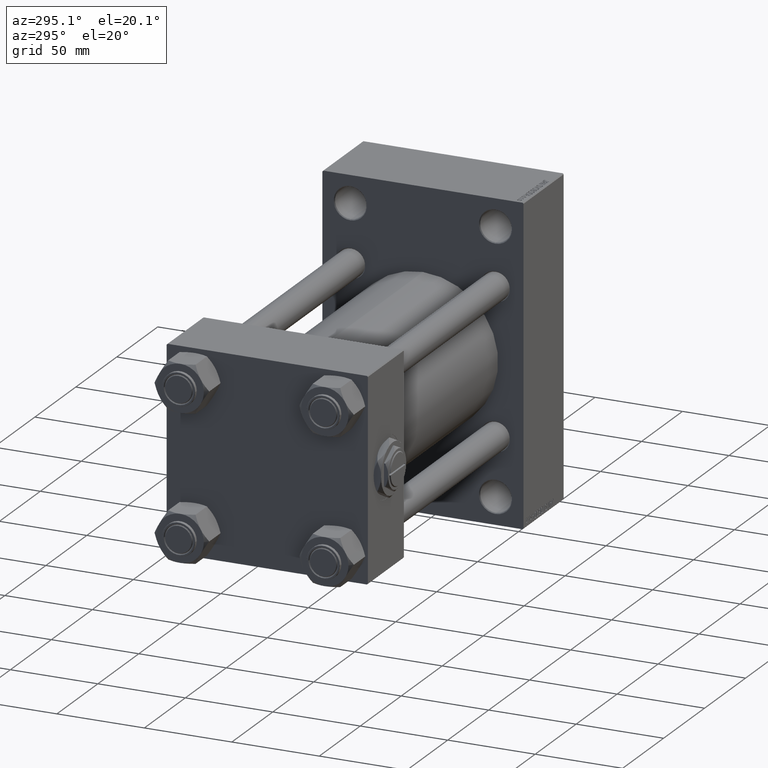
[diagram: clean part render]
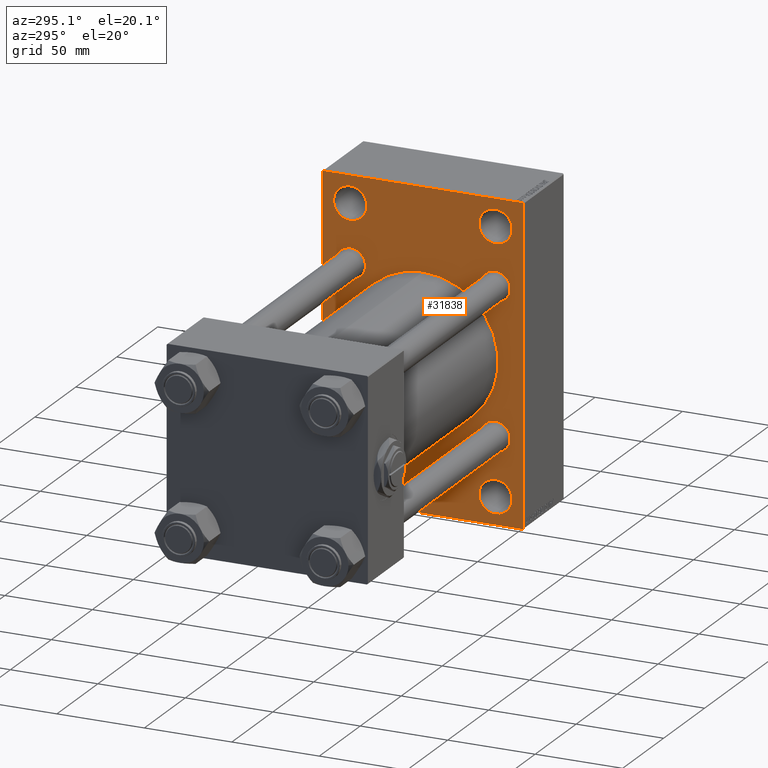
[diagram: same view with one face highlighted and labeled with its STEP entity id]
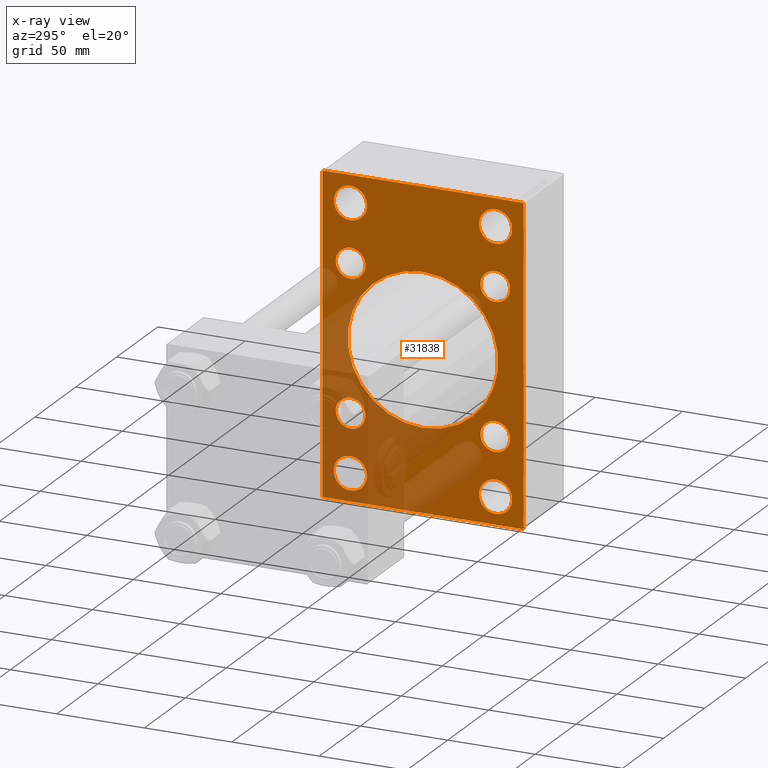
[diagram: x-ray of the same camera — body ghosted, the highlighted face saturated]
A machine part, auxiliary view. The second image highlights one B-rep face of the part: STEP entity #31838.
The next image is the same camera in x-ray: the body ghosted, the highlighted face saturated — about 33% of this face is hidden behind the body in this view.
In plain terms, the highlighted planar face has unit normal (-1, 0, 0).
Its self-contained STEP definition (entity closure, byte-faithful):
#712 = VERTEX_POINT ( 'NONE', #11773 ) ;
#1048 = CARTESIAN_POINT ( 'NONE',  ( 190.0000000000000000, -57.50000000000002132, -89.49999999999997158 ) ) ;
#1068 = CARTESIAN_POINT ( 'NONE',  ( 190.0000000000000000, 41.50000000000000711, 74.50000000000001421 ) ) ;
#1575 = VERTEX_POINT ( 'NONE', #13749 ) ;
#1592 = VERTEX_POINT ( 'NONE', #6980 ) ;
#1739 = CARTESIAN_POINT ( 'NONE',  ( 190.0000000000000000, -41.34999999999998721, -49.85000000000002274 ) ) ;
#1802 = DIRECTION ( 'NONE',  ( 0.000000000000000000, 0.000000000000000000, 1.000000000000000000 ) ) ;
#1828 = AXIS2_PLACEMENT_3D ( 'NONE', #2991, #48993, #21734 ) ;
#1865 = CARTESIAN_POINT ( 'NONE',  ( 190.0000000000000000, 73.50000000000000000, 73.50000000000000000 ) ) ;
#1892 = VERTEX_POINT ( 'NONE', #13445 ) ;
#1895 = EDGE_CURVE ( 'NONE', #33563, #8162, #43940, .T. ) ;
#1953 = EDGE_LOOP ( 'NONE', ( #6549, #42275 ) ) ;
#2056 = LINE ( 'NONE', #47061, #36408 ) ;
#2123 = CARTESIAN_POINT ( 'NONE',  ( 190.0000000000000000, -41.49999999999999289, -74.49999999999998579 ) ) ;
#2580 = CIRCLE ( 'NONE', #4187, 8.500000000000007105 ) ;
#2991 = CARTESIAN_POINT ( 'NONE',  ( 190.0000000000000000, 41.34999999999999432, -41.35000000000000142 ) ) ;
#2994 = ORIENTED_EDGE ( 'NONE', *, *, #36522, .T. ) ;
#3532 = VERTEX_POINT ( 'NONE', #10392 ) ;
#4182 = CIRCLE ( 'NONE', #29729, 8.500000000000007105 ) ;
#4187 = AXIS2_PLACEMENT_3D ( 'NONE', #27138, #15877, #19877 ) ;
#4211 = CARTESIAN_POINT ( 'NONE',  ( 190.0000000000000000, 41.34999999999999432, -32.84999999999999432 ) ) ;
#4523 = EDGE_CURVE ( 'NONE', #26542, #33563, #12380, .T. ) ;
#4784 = DIRECTION ( 'NONE',  ( 0.000000000000000000, 0.000000000000000000, -1.000000000000000000 ) ) ;
#4787 = EDGE_CURVE ( 'NONE', #23980, #7334, #28921, .T. ) ;
#4895 = AXIS2_PLACEMENT_3D ( 'NONE', #42410, #15896, #12155 ) ;
#4958 = EDGE_CURVE ( 'NONE', #32715, #37116, #44902, .T. ) ;
#5022 = DIRECTION ( 'NONE',  ( 0.000000000000000000, 0.000000000000000000, -1.000000000000000000 ) ) ;
#5092 = ORIENTED_EDGE ( 'NONE', *, *, #15119, .T. ) ;
#5093 = ORIENTED_EDGE ( 'NONE', *, *, #17194, .T. ) ;
#5230 = EDGE_CURVE ( 'NONE', #3532, #32025, #48085, .T. ) ;
#5296 = EDGE_CURVE ( 'NONE', #35109, #14400, #2580, .T. ) ;
#5309 = CARTESIAN_POINT ( 'NONE',  ( 190.0000000000000000, -57.00000000000002132, -90.00000000000001421 ) ) ;
#5931 = DIRECTION ( 'NONE',  ( 0.000000000000000000, 0.000000000000000000, 1.000000000000000000 ) ) ;
#6157 = CARTESIAN_POINT ( 'NONE',  ( 190.0000000000000000, -41.49999999999999289, -74.49999999999998579 ) ) ;
#6203 = EDGE_CURVE ( 'NONE', #14400, #35109, #13005, .T. ) ;
#6549 = ORIENTED_EDGE ( 'NONE', *, *, #9343, .T. ) ;
#6701 = FACE_BOUND ( 'NONE', #34926, .T. ) ;
#6980 = CARTESIAN_POINT ( 'NONE',  ( 190.0000000000000000, -57.50000000000002132, 89.49999999999994316 ) ) ;
#6989 = ORIENTED_EDGE ( 'NONE', *, *, #20892, .T. ) ;
#7053 = EDGE_LOOP ( 'NONE', ( #26608, #5092 ) ) ;
#7141 = CARTESIAN_POINT ( 'NONE',  ( 190.0000000000000000, 41.50000000000000711, -74.50000000000000000 ) ) ;
#7334 = VERTEX_POINT ( 'NONE', #34805 ) ;
#7344 = CIRCLE ( 'NONE', #20092, 9.500000000000063949 ) ;
#7692 = CARTESIAN_POINT ( 'NONE',  ( 190.0000000000000000, -41.49999999999999289, 74.50000000000001421 ) ) ;
#7781 = VERTEX_POINT ( 'NONE', #46357 ) ;
#7962 = ORIENTED_EDGE ( 'NONE', *, *, #31626, .T. ) ;
#8162 = VERTEX_POINT ( 'NONE', #1048 ) ;
#8182 = CARTESIAN_POINT ( 'NONE',  ( 190.0000000000000000, 56.99999999999995026, -90.00000000000000000 ) ) ;
#8319 = CIRCLE ( 'NONE', #13105, 9.499999999999980460 ) ;
#8460 = DIRECTION ( 'NONE',  ( 0.000000000000000000, 0.000000000000000000, -1.000000000000000000 ) ) ;
#8984 = LINE ( 'NONE', #38499, #15278 ) ;
#9109 = DIRECTION ( 'NONE',  ( 0.000000000000000000, -1.000000000000000000, -1.206764157201257045E-16 ) ) ;
#9304 = DIRECTION ( 'NONE',  ( 1.000000000000000000, -0.000000000000000000, 0.000000000000000000 ) ) ;
#9343 = EDGE_CURVE ( 'NONE', #7781, #1575, #8319, .T. ) ;
#9544 = AXIS2_PLACEMENT_3D ( 'NONE', #6157, #9911, #25399 ) ;
#9651 = VECTOR ( 'NONE', #21421, 1000.000000000000000 ) ;
#9847 = DIRECTION ( 'NONE',  ( 1.000000000000000000, -0.000000000000000000, 0.000000000000000000 ) ) ;
#9911 = DIRECTION ( 'NONE',  ( 1.000000000000000000, -0.000000000000000000, 0.000000000000000000 ) ) ;
#9969 = DIRECTION ( 'NONE',  ( 1.000000000000000000, -0.000000000000000000, 0.000000000000000000 ) ) ;
#10002 = VERTEX_POINT ( 'NONE', #31388 ) ;
#10392 = CARTESIAN_POINT ( 'NONE',  ( 190.0000000000000000, 41.34999999999999432, 49.85000000000001563 ) ) ;
#11148 = CIRCLE ( 'NONE', #9544, 9.500000000000063949 ) ;
#11310 = ORIENTED_EDGE ( 'NONE', *, *, #22381, .T. ) ;
#11560 = EDGE_LOOP ( 'NONE', ( #32821, #19352 ) ) ;
#11773 = CARTESIAN_POINT ( 'NONE',  ( 190.0000000000000000, -2.602085213965210642E-15, 43.00000000000000000 ) ) ;
#12155 = DIRECTION ( 'NONE',  ( 0.000000000000000000, 0.000000000000000000, 1.000000000000000000 ) ) ;
#12380 = LINE ( 'NONE', #43859, #47294 ) ;
#12477 = ORIENTED_EDGE ( 'NONE', *, *, #38106, .T. ) ;
#13005 = CIRCLE ( 'NONE', #1828, 8.500000000000007105 ) ;
#13057 = CARTESIAN_POINT ( 'NONE',  ( 190.0000000000000000, 41.50000000000000711, 74.50000000000001421 ) ) ;
#13105 = AXIS2_PLACEMENT_3D ( 'NONE', #44582, #17822, #33100 ) ;
#13369 = CARTESIAN_POINT ( 'NONE',  ( 190.0000000000000000, -57.00000000000001421, 89.99999999999997158 ) ) ;
#13445 = CARTESIAN_POINT ( 'NONE',  ( 190.0000000000000000, 2.663896022368408223E-15, -43.00000000000000000 ) ) ;
#13581 = ORIENTED_EDGE ( 'NONE', *, *, #16692, .F. ) ;
#13619 = DIRECTION ( 'NONE',  ( 0.000000000000000000, 0.000000000000000000, 1.000000000000000000 ) ) ;
#13729 = CARTESIAN_POINT ( 'NONE',  ( 190.0000000000000000, 41.50000000000000711, -83.99999999999997158 ) ) ;
#13749 = CARTESIAN_POINT ( 'NONE',  ( 190.0000000000000000, -41.49999999999999289, 65.00000000000002842 ) ) ;
#13752 = AXIS2_PLACEMENT_3D ( 'NONE', #26203, #18947, #34210 ) ;
#13955 = CARTESIAN_POINT ( 'NONE',  ( 190.0000000000000000, -41.34999999999998721, -41.35000000000000853 ) ) ;
#14206 = FACE_BOUND ( 'NONE', #31241, .T. ) ;
#14400 = VERTEX_POINT ( 'NONE', #37480 ) ;
#15119 = EDGE_CURVE ( 'NONE', #1892, #712, #25982, .T. ) ;
#15147 = ORIENTED_EDGE ( 'NONE', *, *, #44409, .T. ) ;
#15278 = VECTOR ( 'NONE', #31015, 1000.000000000000000 ) ;
#15470 = VERTEX_POINT ( 'NONE', #17920 ) ;
#15755 = CARTESIAN_POINT ( 'NONE',  ( 190.0000000000000000, 41.50000000000000711, -74.50000000000000000 ) ) ;
#15877 = DIRECTION ( 'NONE',  ( 1.000000000000000000, -0.000000000000000000, 0.000000000000000000 ) ) ;
#15896 = DIRECTION ( 'NONE',  ( 1.000000000000000000, -0.000000000000000000, 0.000000000000000000 ) ) ;
#15989 = EDGE_CURVE ( 'NONE', #712, #1892, #25200, .T. ) ;
#16359 = CARTESIAN_POINT ( 'NONE',  ( 190.0000000000000000, -41.34999999999998721, 41.35000000000000853 ) ) ;
#16509 = DIRECTION ( 'NONE',  ( 1.000000000000000000, 0.000000000000000000, 0.000000000000000000 ) ) ;
#16692 = EDGE_CURVE ( 'NONE', #45182, #44185, #47150, .T. ) ;
#16744 = ORIENTED_EDGE ( 'NONE', *, *, #5296, .T. ) ;
#16888 = CARTESIAN_POINT ( 'NONE',  ( 190.0000000000000000, -41.34999999999998721, 32.85000000000000142 ) ) ;
#17136 = LINE ( 'NONE', #40143, #32727 ) ;
#17194 = EDGE_CURVE ( 'NONE', #7334, #23980, #26054, .T. ) ;
#17779 = CARTESIAN_POINT ( 'NONE',  ( 190.0000000000000000, -41.34999999999998721, -32.85000000000000142 ) ) ;
#17822 = DIRECTION ( 'NONE',  ( 1.000000000000000000, -0.000000000000000000, 0.000000000000000000 ) ) ;
#17919 = VERTEX_POINT ( 'NONE', #39373 ) ;
#17920 = CARTESIAN_POINT ( 'NONE',  ( 190.0000000000000000, -41.49999999999999289, -84.00000000000004263 ) ) ;
#18947 = DIRECTION ( 'NONE',  ( -1.000000000000000000, 0.000000000000000000, -0.000000000000000000 ) ) ;
#18997 = CIRCLE ( 'NONE', #45339, 8.500000000000007105 ) ;
#19238 = CIRCLE ( 'NONE', #4895, 8.500000000000007105 ) ;
#19352 = ORIENTED_EDGE ( 'NONE', *, *, #37820, .T. ) ;
#19623 = AXIS2_PLACEMENT_3D ( 'NONE', #23271, #38535, #4784 ) ;
#19877 = DIRECTION ( 'NONE',  ( 0.000000000000000000, 0.000000000000000000, 1.000000000000000000 ) ) ;
#19940 = EDGE_CURVE ( 'NONE', #41426, #25677, #38943, .T. ) ;
#20092 = AXIS2_PLACEMENT_3D ( 'NONE', #2123, #32642, #13619 ) ;
#20424 = CARTESIAN_POINT ( 'NONE',  ( 190.0000000000000000, 41.50000000000000711, 65.00000000000002842 ) ) ;
#20551 = DIRECTION ( 'NONE',  ( 0.000000000000000000, 0.000000000000000000, 1.000000000000000000 ) ) ;
#20892 = EDGE_CURVE ( 'NONE', #37116, #32715, #31786, .T. ) ;
#21044 = DIRECTION ( 'NONE',  ( -0.000000000000000000, 0.7071067811865328068, 0.7071067811865622277 ) ) ;
#21189 = VERTEX_POINT ( 'NONE', #17779 ) ;
#21421 = DIRECTION ( 'NONE',  ( 0.000000000000000000, -0.7071067811865573427, 0.7071067811865378028 ) ) ;
#21734 = DIRECTION ( 'NONE',  ( 0.000000000000000000, 0.000000000000000000, 1.000000000000000000 ) ) ;
#21794 = VECTOR ( 'NONE', #33122, 1000.000000000000114 ) ;
#22381 = EDGE_CURVE ( 'NONE', #10002, #26542, #17136, .T. ) ;
#22939 = DIRECTION ( 'NONE',  ( 1.000000000000000000, -0.000000000000000000, 0.000000000000000000 ) ) ;
#23013 = EDGE_CURVE ( 'NONE', #21189, #32664, #18997, .T. ) ;
#23247 = DIRECTION ( 'NONE',  ( 1.000000000000000000, -0.000000000000000000, 0.000000000000000000 ) ) ;
#23271 = CARTESIAN_POINT ( 'NONE',  ( 190.0000000000000000, -2.602085213965210642E-15, 0.000000000000000000 ) ) ;
#23296 = AXIS2_PLACEMENT_3D ( 'NONE', #28989, #39988, #25238 ) ;
#23980 = VERTEX_POINT ( 'NONE', #20424 ) ;
#24173 = CARTESIAN_POINT ( 'NONE',  ( 190.0000000000000000, -41.49999999999999289, -64.99999999999991473 ) ) ;
#24915 = AXIS2_PLACEMENT_3D ( 'NONE', #15755, #23247, #38510 ) ;
#25004 = CARTESIAN_POINT ( 'NONE',  ( 190.0000000000000000, -2.602085213965210642E-15, 0.000000000000000000 ) ) ;
#25096 = DIRECTION ( 'NONE',  ( 0.000000000000000000, 0.000000000000000000, 1.000000000000000000 ) ) ;
#25145 = CARTESIAN_POINT ( 'NONE',  ( 190.0000000000000000, 57.00000000000002842, 89.99999999999998579 ) ) ;
#25200 = CIRCLE ( 'NONE', #19623, 43.00000000000000000 ) ;
#25238 = DIRECTION ( 'NONE',  ( 0.000000000000000000, 0.000000000000000000, 1.000000000000000000 ) ) ;
#25399 = DIRECTION ( 'NONE',  ( 0.000000000000000000, 0.000000000000000000, 1.000000000000000000 ) ) ;
#25677 = VERTEX_POINT ( 'NONE', #16888 ) ;
#25950 = DIRECTION ( 'NONE',  ( 0.000000000000000000, 0.000000000000000000, 1.000000000000000000 ) ) ;
#25955 = FACE_BOUND ( 'NONE', #33984, .T. ) ;
#25982 = CIRCLE ( 'NONE', #45935, 43.00000000000000000 ) ;
#26054 = CIRCLE ( 'NONE', #32460, 9.499999999999980460 ) ;
#26203 = CARTESIAN_POINT ( 'NONE',  ( 190.0000000000000000, 0.000000000000000000, 0.000000000000000000 ) ) ;
#26228 = ORIENTED_EDGE ( 'NONE', *, *, #23013, .T. ) ;
#26542 = VERTEX_POINT ( 'NONE', #8182 ) ;
#26608 = ORIENTED_EDGE ( 'NONE', *, *, #15989, .T. ) ;
#26687 = EDGE_CURVE ( 'NONE', #15470, #32903, #11148, .T. ) ;
#27138 = CARTESIAN_POINT ( 'NONE',  ( 190.0000000000000000, 41.34999999999999432, -41.35000000000000142 ) ) ;
#27435 = EDGE_CURVE ( 'NONE', #1575, #7781, #42305, .T. ) ;
#27891 = DIRECTION ( 'NONE',  ( 0.000000000000000000, 0.000000000000000000, 1.000000000000000000 ) ) ;
#28805 = ORIENTED_EDGE ( 'NONE', *, *, #29383, .F. ) ;
#28921 = CIRCLE ( 'NONE', #46480, 9.499999999999980460 ) ;
#28989 = CARTESIAN_POINT ( 'NONE',  ( 190.0000000000000000, 41.34999999999999432, 41.35000000000000142 ) ) ;
#29383 = EDGE_CURVE ( 'NONE', #1592, #8162, #31228, .T. ) ;
#29729 = AXIS2_PLACEMENT_3D ( 'NONE', #31666, #32152, #27891 ) ;
#29956 = PLANE ( 'NONE',  #13752 ) ;
#30019 = VECTOR ( 'NONE', #32164, 1000.000000000000000 ) ;
#30366 = EDGE_CURVE ( 'NONE', #32664, #21189, #19238, .T. ) ;
#30989 = ORIENTED_EDGE ( 'NONE', *, *, #1895, .T. ) ;
#31015 = DIRECTION ( 'NONE',  ( 0.000000000000000000, 3.854941057726238467E-17, -1.000000000000000000 ) ) ;
#31148 = AXIS2_PLACEMENT_3D ( 'NONE', #7692, #22939, #38206 ) ;
#31228 = LINE ( 'NONE', #46461, #36774 ) ;
#31241 = EDGE_LOOP ( 'NONE', ( #31610, #2994 ) ) ;
#31388 = CARTESIAN_POINT ( 'NONE',  ( 190.0000000000000000, 57.49999999999997868, -89.49999999999990052 ) ) ;
#31610 = ORIENTED_EDGE ( 'NONE', *, *, #5230, .T. ) ;
#31626 = EDGE_CURVE ( 'NONE', #17919, #10002, #8984, .T. ) ;
#31666 = CARTESIAN_POINT ( 'NONE',  ( 190.0000000000000000, 41.34999999999999432, 41.35000000000000142 ) ) ;
#31786 = CIRCLE ( 'NONE', #35776, 9.499999999999980460 ) ;
#31838 = ADVANCED_FACE ( 'NONE', ( #44955, #48952, #41462, #25955, #37458, #14206, #6701, #41212, #49449, #45699 ), #29956, .T. ) ;
#32025 = VERTEX_POINT ( 'NONE', #32188 ) ;
#32073 = DIRECTION ( 'NONE',  ( 1.000000000000000000, -0.000000000000000000, 0.000000000000000000 ) ) ;
#32152 = DIRECTION ( 'NONE',  ( 1.000000000000000000, -0.000000000000000000, 0.000000000000000000 ) ) ;
#32164 = DIRECTION ( 'NONE',  ( 0.000000000000000000, -1.000000000000000000, -1.206764157201257291E-16 ) ) ;
#32188 = CARTESIAN_POINT ( 'NONE',  ( 190.0000000000000000, 41.34999999999999432, 32.84999999999999432 ) ) ;
#32460 = AXIS2_PLACEMENT_3D ( 'NONE', #1068, #9304, #1802 ) ;
#32572 = AXIS2_PLACEMENT_3D ( 'NONE', #16359, #9847, #25096 ) ;
#32642 = DIRECTION ( 'NONE',  ( 1.000000000000000000, -0.000000000000000000, 0.000000000000000000 ) ) ;
#32664 = VERTEX_POINT ( 'NONE', #1739 ) ;
#32715 = VERTEX_POINT ( 'NONE', #13729 ) ;
#32727 = VECTOR ( 'NONE', #36891, 1000.000000000000000 ) ;
#32821 = ORIENTED_EDGE ( 'NONE', *, *, #19940, .T. ) ;
#32878 = LINE ( 'NONE', #1865, #21794 ) ;
#32903 = VERTEX_POINT ( 'NONE', #24173 ) ;
#33031 = AXIS2_PLACEMENT_3D ( 'NONE', #43928, #40176, #5931 ) ;
#33076 = ORIENTED_EDGE ( 'NONE', *, *, #26687, .T. ) ;
#33100 = DIRECTION ( 'NONE',  ( 0.000000000000000000, 0.000000000000000000, 1.000000000000000000 ) ) ;
#33122 = DIRECTION ( 'NONE',  ( 0.000000000000000000, 0.7071067811865474617, -0.7071067811865474617 ) ) ;
#33563 = VERTEX_POINT ( 'NONE', #5309 ) ;
#33984 = EDGE_LOOP ( 'NONE', ( #5093, #44866 ) ) ;
#34210 = DIRECTION ( 'NONE',  ( -0.000000000000000000, 0.000000000000000000, 1.000000000000000000 ) ) ;
#34805 = CARTESIAN_POINT ( 'NONE',  ( 190.0000000000000000, 41.50000000000000711, 83.99999999999998579 ) ) ;
#34926 = EDGE_LOOP ( 'NONE', ( #16744, #43844 ) ) ;
#35109 = VERTEX_POINT ( 'NONE', #4211 ) ;
#35745 = EDGE_CURVE ( 'NONE', #32903, #15470, #7344, .T. ) ;
#35776 = AXIS2_PLACEMENT_3D ( 'NONE', #7141, #48900, #45891 ) ;
#36408 = VECTOR ( 'NONE', #21044, 1000.000000000000000 ) ;
#36522 = EDGE_CURVE ( 'NONE', #32025, #3532, #4182, .T. ) ;
#36589 = EDGE_LOOP ( 'NONE', ( #6989, #45234 ) ) ;
#36774 = VECTOR ( 'NONE', #8460, 1000.000000000000000 ) ;
#36891 = DIRECTION ( 'NONE',  ( -0.000000000000000000, -0.7071067811865378028, -0.7071067811865573427 ) ) ;
#37116 = VERTEX_POINT ( 'NONE', #40047 ) ;
#37458 = FACE_BOUND ( 'NONE', #11560, .T. ) ;
#37480 = CARTESIAN_POINT ( 'NONE',  ( 190.0000000000000000, 41.34999999999999432, -49.85000000000001563 ) ) ;
#37818 = ORIENTED_EDGE ( 'NONE', *, *, #30366, .T. ) ;
#37820 = EDGE_CURVE ( 'NONE', #25677, #41426, #47357, .T. ) ;
#38106 = EDGE_CURVE ( 'NONE', #45182, #17919, #32878, .T. ) ;
#38206 = DIRECTION ( 'NONE',  ( 0.000000000000000000, 0.000000000000000000, 1.000000000000000000 ) ) ;
#38499 = CARTESIAN_POINT ( 'NONE',  ( 190.0000000000000000, 57.49999999999997158, 89.99999999999998579 ) ) ;
#38510 = DIRECTION ( 'NONE',  ( 0.000000000000000000, 0.000000000000000000, 1.000000000000000000 ) ) ;
#38535 = DIRECTION ( 'NONE',  ( 1.000000000000000000, 0.000000000000000000, 0.000000000000000000 ) ) ;
#38943 = CIRCLE ( 'NONE', #32572, 8.500000000000007105 ) ;
#39373 = CARTESIAN_POINT ( 'NONE',  ( 190.0000000000000000, 57.49999999999997158, 89.50000000000004263 ) ) ;
#39459 = ORIENTED_EDGE ( 'NONE', *, *, #35745, .T. ) ;
#39988 = DIRECTION ( 'NONE',  ( 1.000000000000000000, -0.000000000000000000, 0.000000000000000000 ) ) ;
#40047 = CARTESIAN_POINT ( 'NONE',  ( 190.0000000000000000, 41.50000000000000711, -65.00000000000001421 ) ) ;
#40143 = CARTESIAN_POINT ( 'NONE',  ( 190.0000000000000000, 73.50000000000076739, -73.49999999999873523 ) ) ;
#40176 = DIRECTION ( 'NONE',  ( 1.000000000000000000, -0.000000000000000000, 0.000000000000000000 ) ) ;
#40439 = CARTESIAN_POINT ( 'NONE',  ( 190.0000000000000000, -73.49999999999923261, -73.50000000000127898 ) ) ;
#41212 = FACE_BOUND ( 'NONE', #42227, .T. ) ;
#41426 = VERTEX_POINT ( 'NONE', #43151 ) ;
#41462 = FACE_BOUND ( 'NONE', #36589, .T. ) ;
#42227 = EDGE_LOOP ( 'NONE', ( #26228, #37818 ) ) ;
#42275 = ORIENTED_EDGE ( 'NONE', *, *, #27435, .T. ) ;
#42305 = CIRCLE ( 'NONE', #31148, 9.499999999999980460 ) ;
#42410 = CARTESIAN_POINT ( 'NONE',  ( 190.0000000000000000, -41.34999999999998721, -41.35000000000000853 ) ) ;
#42722 = EDGE_LOOP ( 'NONE', ( #39459, #33076 ) ) ;
#43150 = CARTESIAN_POINT ( 'NONE',  ( 190.0000000000000000, 57.49999999999997158, 89.99999999999998579 ) ) ;
#43151 = CARTESIAN_POINT ( 'NONE',  ( 190.0000000000000000, -41.34999999999998721, 49.85000000000002274 ) ) ;
#43255 = ORIENTED_EDGE ( 'NONE', *, *, #4523, .T. ) ;
#43844 = ORIENTED_EDGE ( 'NONE', *, *, #6203, .T. ) ;
#43859 = CARTESIAN_POINT ( 'NONE',  ( 190.0000000000000000, 57.49999999999997868, -90.00000000000000000 ) ) ;
#43928 = CARTESIAN_POINT ( 'NONE',  ( 190.0000000000000000, -41.34999999999998721, 41.35000000000000853 ) ) ;
#43940 = LINE ( 'NONE', #40439, #9651 ) ;
#44185 = VERTEX_POINT ( 'NONE', #13369 ) ;
#44409 = EDGE_CURVE ( 'NONE', #1592, #44185, #2056, .T. ) ;
#44582 = CARTESIAN_POINT ( 'NONE',  ( 190.0000000000000000, -41.49999999999999289, 74.50000000000001421 ) ) ;
#44866 = ORIENTED_EDGE ( 'NONE', *, *, #4787, .T. ) ;
#44902 = CIRCLE ( 'NONE', #24915, 9.499999999999980460 ) ;
#44955 = FACE_BOUND ( 'NONE', #1953, .T. ) ;
#45182 = VERTEX_POINT ( 'NONE', #25145 ) ;
#45234 = ORIENTED_EDGE ( 'NONE', *, *, #4958, .T. ) ;
#45339 = AXIS2_PLACEMENT_3D ( 'NONE', #13955, #9969, #25950 ) ;
#45401 = EDGE_LOOP ( 'NONE', ( #43255, #30989, #28805, #15147, #13581, #12477, #7962, #11310 ) ) ;
#45699 = FACE_OUTER_BOUND ( 'NONE', #45401, .T. ) ;
#45891 = DIRECTION ( 'NONE',  ( 0.000000000000000000, 0.000000000000000000, 1.000000000000000000 ) ) ;
#45935 = AXIS2_PLACEMENT_3D ( 'NONE', #25004, #16509, #5022 ) ;
#46357 = CARTESIAN_POINT ( 'NONE',  ( 190.0000000000000000, -41.49999999999999289, 83.99999999999998579 ) ) ;
#46461 = CARTESIAN_POINT ( 'NONE',  ( 190.0000000000000000, -57.50000000000002132, 89.99999999999997158 ) ) ;
#46480 = AXIS2_PLACEMENT_3D ( 'NONE', #13057, #32073, #20551 ) ;
#47061 = CARTESIAN_POINT ( 'NONE',  ( 190.0000000000000000, -73.50000000000117950, 73.49999999999810996 ) ) ;
#47150 = LINE ( 'NONE', #43150, #30019 ) ;
#47294 = VECTOR ( 'NONE', #9109, 1000.000000000000000 ) ;
#47357 = CIRCLE ( 'NONE', #33031, 8.500000000000007105 ) ;
#48085 = CIRCLE ( 'NONE', #23296, 8.500000000000007105 ) ;
#48900 = DIRECTION ( 'NONE',  ( 1.000000000000000000, -0.000000000000000000, 0.000000000000000000 ) ) ;
#48952 = FACE_BOUND ( 'NONE', #42722, .T. ) ;
#48993 = DIRECTION ( 'NONE',  ( 1.000000000000000000, -0.000000000000000000, 0.000000000000000000 ) ) ;
#49449 = FACE_BOUND ( 'NONE', #7053, .T. ) ;